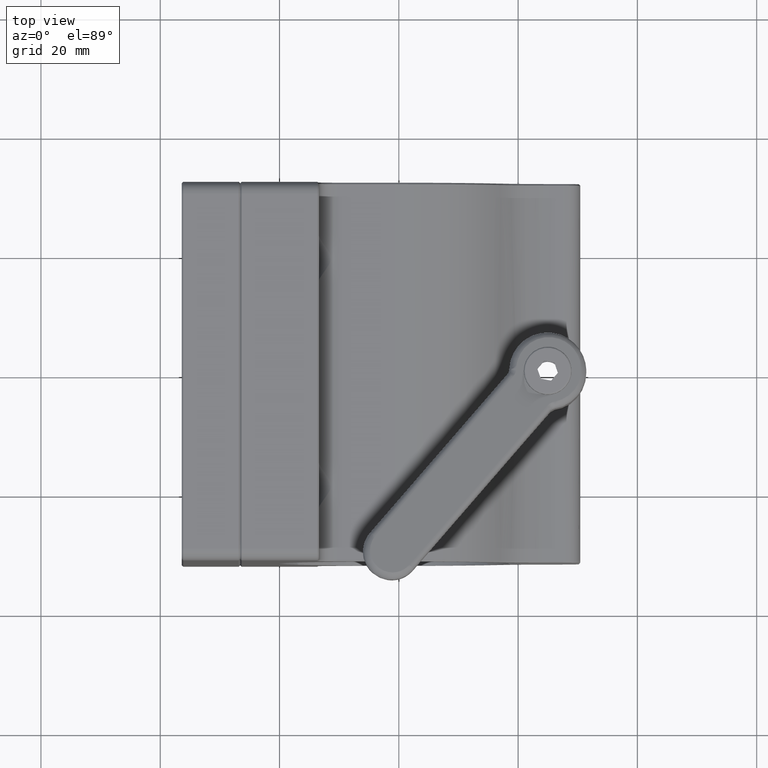
[diagram: clean part render]
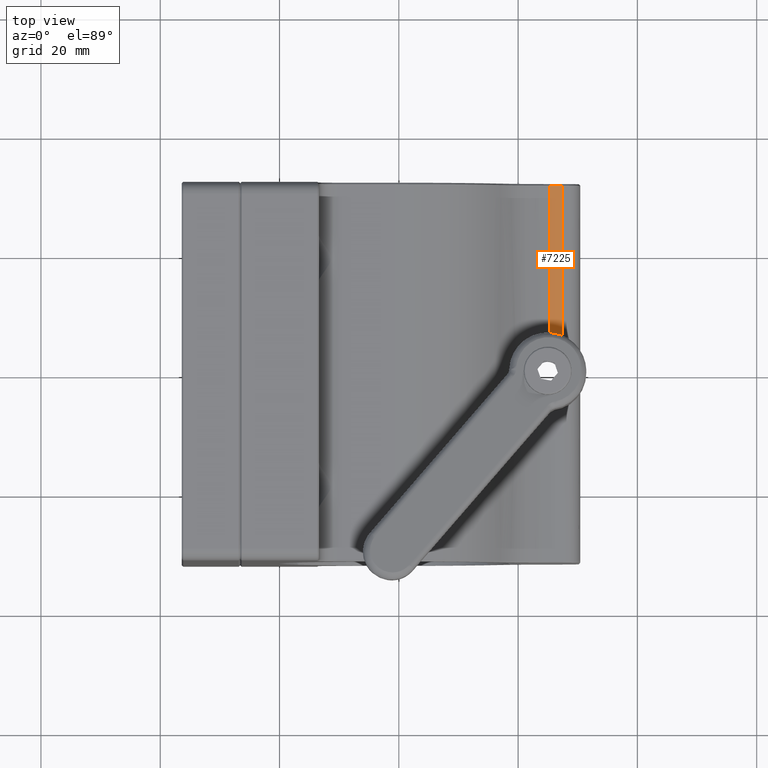
[diagram: same view with one face highlighted and labeled with its STEP entity id]
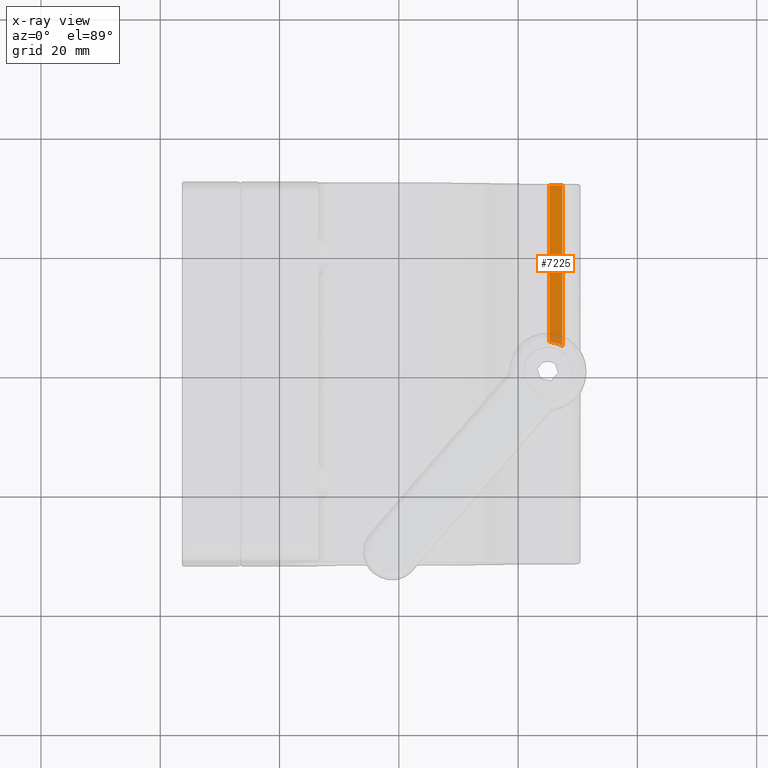
[diagram: x-ray of the same camera — body ghosted, the highlighted face saturated]
A machine part, top view. The second image highlights one B-rep face of the part: STEP entity #7225.
The next image is the same camera in x-ray: the body ghosted, the highlighted face saturated — about 6% of this face is hidden behind the body in this view.
In plain terms, the highlighted planar face has unit normal (0, 0, -1).
Its self-contained STEP definition (entity closure, byte-faithful):
#20 = AXIS2_PLACEMENT_3D ( 'NONE', #13522, #12384, #14972 ) ;
#845 = DIRECTION ( 'NONE',  ( 0.000000000000000000, -1.000000000000000000, 0.000000000000000000 ) ) ;
#962 = VERTEX_POINT ( 'NONE', #14821 ) ;
#1047 = VERTEX_POINT ( 'NONE', #3851 ) ;
#1318 = PLANE ( 'NONE',  #1453 ) ;
#1453 = AXIS2_PLACEMENT_3D ( 'NONE', #9840, #8712, #12360 ) ;
#1487 = DIRECTION ( 'NONE',  ( -0.000000000000000000, 1.000000000000000000, 0.000000000000000000 ) ) ;
#2425 = LINE ( 'NONE', #13694, #8797 ) ;
#3203 = EDGE_CURVE ( 'NONE', #13649, #1047, #14539, .T. ) ;
#3747 = FACE_OUTER_BOUND ( 'NONE', #4048, .T. ) ;
#3851 = CARTESIAN_POINT ( 'NONE',  ( 47.41899999999999693, 4.637984476041286719, 8.899999999999998579 ) ) ;
#4048 = EDGE_LOOP ( 'NONE', ( #6754, #7900, #4829, #11022 ) ) ;
#4396 = LINE ( 'NONE', #10650, #12332 ) ;
#4829 = ORIENTED_EDGE ( 'NONE', *, *, #8459, .T. ) ;
#6468 = EDGE_CURVE ( 'NONE', #1047, #15954, #7484, .T. ) ;
#6754 = ORIENTED_EDGE ( 'NONE', *, *, #6468, .T. ) ;
#7225 = ADVANCED_FACE ( 'NONE', ( #3747 ), #1318, .F. ) ;
#7484 = LINE ( 'NONE', #10071, #7607 ) ;
#7607 = VECTOR ( 'NONE', #1487, 1000.000000000000000 ) ;
#7900 = ORIENTED_EDGE ( 'NONE', *, *, #12885, .T. ) ;
#8459 = EDGE_CURVE ( 'NONE', #962, #13649, #4396, .T. ) ;
#8596 = CARTESIAN_POINT ( 'NONE',  ( 45.25009797252760535, 5.241923499097469907, 8.899999999999998579 ) ) ;
#8712 = DIRECTION ( 'NONE',  ( 0.000000000000000000, 0.000000000000000000, -1.000000000000000000 ) ) ;
#8797 = VECTOR ( 'NONE', #14679, 1000.000000000000000 ) ;
#9840 = CARTESIAN_POINT ( 'NONE',  ( 39.53269249358447013, -31.75000000000001421, 8.899999999999998579 ) ) ;
#10071 = CARTESIAN_POINT ( 'NONE',  ( 47.41899999999999693, 31.75000000000000000, 8.899999999999998579 ) ) ;
#10650 = CARTESIAN_POINT ( 'NONE',  ( 45.25009797252760535, -31.75000000000001421, 8.899999999999998579 ) ) ;
#11022 = ORIENTED_EDGE ( 'NONE', *, *, #3203, .T. ) ;
#12332 = VECTOR ( 'NONE', #845, 1000.000000000000000 ) ;
#12360 = DIRECTION ( 'NONE',  ( -1.000000000000000000, 0.000000000000000000, -0.000000000000000000 ) ) ;
#12384 = DIRECTION ( 'NONE',  ( 0.000000000000000000, 0.000000000000000000, -1.000000000000000000 ) ) ;
#12885 = EDGE_CURVE ( 'NONE', #15954, #962, #2425, .T. ) ;
#13522 = CARTESIAN_POINT ( 'NONE',  ( 44.95899999999999608, -2.414953626399208567E-15, 8.899999999999998579 ) ) ;
#13649 = VERTEX_POINT ( 'NONE', #8596 ) ;
#13694 = CARTESIAN_POINT ( 'NONE',  ( 39.53269249358447013, 31.50000000000000000, 8.899999999999998579 ) ) ;
#14352 = CARTESIAN_POINT ( 'NONE',  ( 47.41899999999999693, 31.50000000000000000, 8.899999999999998579 ) ) ;
#14539 = CIRCLE ( 'NONE', #20, 5.249999999999997335 ) ;
#14679 = DIRECTION ( 'NONE',  ( -1.000000000000000000, 0.000000000000000000, 0.000000000000000000 ) ) ;
#14821 = CARTESIAN_POINT ( 'NONE',  ( 45.25009797252760535, 31.50000000000000000, 8.899999999999998579 ) ) ;
#14972 = DIRECTION ( 'NONE',  ( -1.000000000000000000, 0.000000000000000000, 0.000000000000000000 ) ) ;
#15954 = VERTEX_POINT ( 'NONE', #14352 ) ;